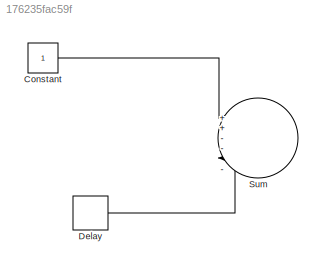
MODEL slx_176235fac59f
KIND model
BLOCK [Constant] Constant
BLOCK [Delay] Delay
  DelayLength = 1
  InitialCondition = 0
  InputPortMap = u0
  Ports = [1, 1]
BLOCK [Sum] Sum
  IconShape = round
  InputSameDT = off
  Inputs = |++--||-++
  OutDataTypeStr = Inherit: Inherit via internal rule
  Ports = [7, 1]
  SaturateOnIntegerOverflow = off
LINE Constant:1 -> Sum:2
LINE Delay:1 -> Sum:6
